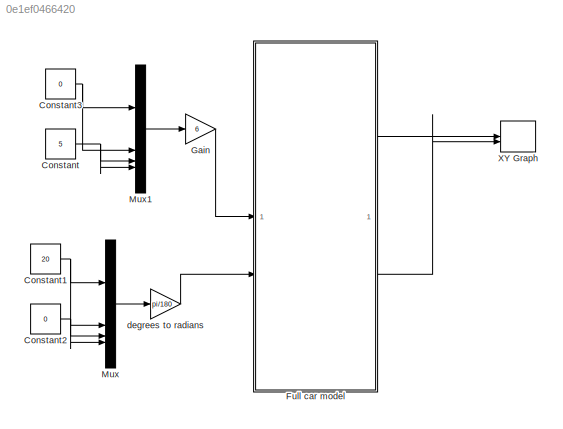
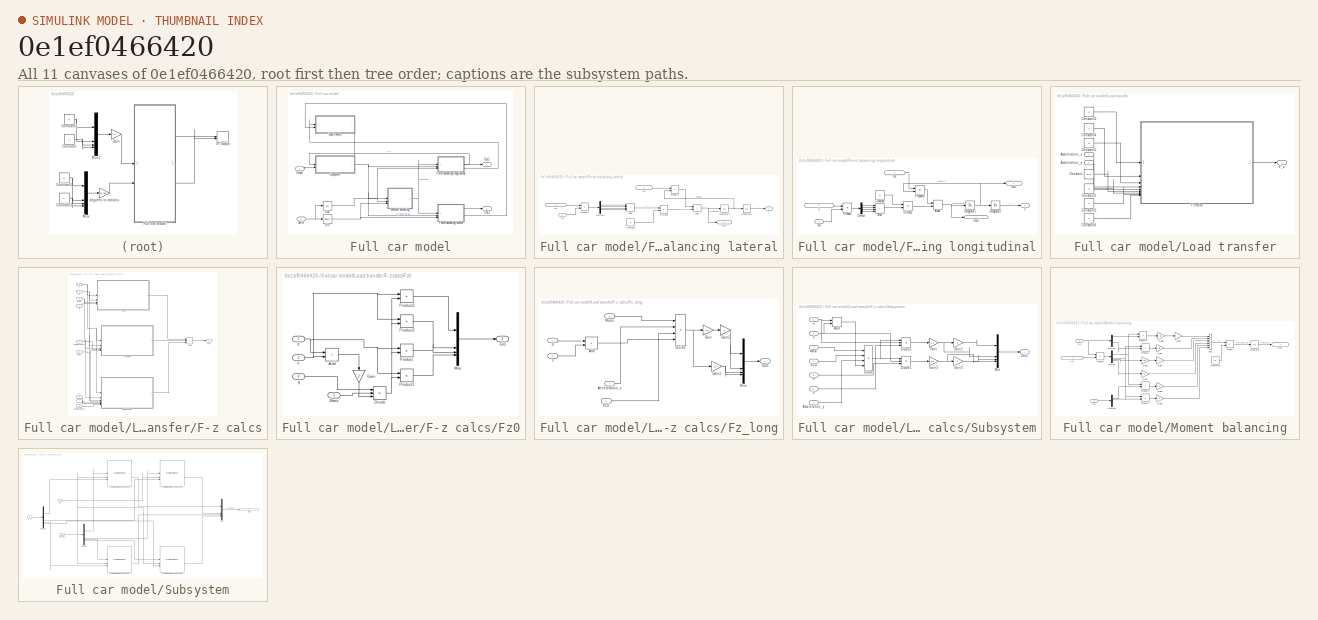
[diagram: thumbnail index - all 11 canvases of the model, root first then tree order]
MODEL slx_0e1ef0466420
KIND model
CONFIG AbsTol = auto
CONFIG EnableMultiTasking = off
CONFIG FixedStep = auto
CONFIG MaxStep = auto
CONFIG MinStep = auto
CONFIG RelTol = 1e-3
CONFIG SampleTimeConstraint = Unconstrained
CONFIG SolverName = VariableStepAuto
CONFIG StartTime = 0.0
CONFIG StopTime = 10
WORKSPACE source: external: MATLAB File  (data not in archive)
BLOCK [Constant] Constant
  Value = 5
BLOCK [Constant] Constant1
  Value = 20
BLOCK [Constant] Constant2
  Value = 0
BLOCK [Constant] Constant3
  Value = 0
BLOCK [SubSystem] Full car model
BLOCK [Trigonometry] Full car model/Cos
  Operator = cos
BLOCK [SubSystem] Full car model/Force balancing lateral
BLOCK [Sum] Full car model/Force balancing lateral/Add2
  IconShape = rectangular
  Inputs = ++++
BLOCK [Sum] Full car model/Force balancing lateral/Add4
  IconShape = rectangular
BLOCK [Constant] Full car model/Force balancing lateral/Constant
  Value = M
BLOCK [Demux] Full car model/Force balancing lateral/Demux3
BLOCK [Product] Full car model/Force balancing lateral/Divide3
  Inputs = */
BLOCK [Inport] Full car model/Force balancing lateral/In1
  IconDisplay = Signal name
BLOCK [Inport] Full car model/Force balancing lateral/In3
  IconDisplay = Signal name
  Port = 2
BLOCK [Inport] Full car model/Force balancing lateral/In4
  IconDisplay = Signal name
  Port = 3
BLOCK [Integrator] Full car model/Force balancing lateral/Integrator3
BLOCK [Integrator] Full car model/Force balancing lateral/Integrator4
BLOCK [Outport] Full car model/Force balancing lateral/Out1
  IconDisplay = Signal name
  Port = 2
BLOCK [Product] Full car model/Force balancing lateral/Product5
BLOCK [Product] Full car model/Force balancing lateral/Product7
BLOCK [Outport] Full car model/Force balancing lateral/y
BLOCK [SubSystem] Full car model/Force balancing longitudinal
BLOCK [Inport] Full car model/Force balancing longitudinal/2
  IconDisplay = Signal name
  Port = 2
BLOCK [Sum] Full car model/Force balancing longitudinal/Add
  IconShape = rectangular
  Inputs = ++++
BLOCK [Sum] Full car model/Force balancing longitudinal/Add3
  IconShape = rectangular
BLOCK [Constant] Full car model/Force balancing longitudinal/Constant
  Value = M
BLOCK [Demux] Full car model/Force balancing longitudinal/Demux
BLOCK [Product] Full car model/Force balancing longitudinal/Divide2
  Inputs = /*
BLOCK [Inport] Full car model/Force balancing longitudinal/In2
  IconDisplay = Signal name
BLOCK [Inport] Full car model/Force balancing longitudinal/In3
  Port = 3
BLOCK [Integrator] Full car model/Force balancing longitudinal/Integrator1
BLOCK [Integrator] Full car model/Force balancing longitudinal/Integrator2
BLOCK [Outport] Full car model/Force balancing longitudinal/Out1
  IconDisplay = Signal name
BLOCK [Outport] Full car model/Force balancing longitudinal/Out2
  IconDisplay = Signal name
  Port = 3
BLOCK [Product] Full car model/Force balancing longitudinal/Product
BLOCK [Product] Full car model/Force balancing longitudinal/Product6
BLOCK [Outport] Full car model/Force balancing longitudinal/x
  Port = 2
BLOCK [SubSystem] Full car model/Load transfer
  PortSchema = {"entries":[{"content":{"sides":[{"content":{"connectorIds":["In1","In2"]},"type":"ConnectorPlacement.EquallySpacedRectSide","uuid":"7a92a029-f41c-4e83-8aa5-ec6ce698d097"},{"content":{"side":"RIGHT"},"type":"ConnectorPlacement.EquallySpacedRectSide","uuid":"18898237-2ea1-4fb3-bf3b-8bf473bf92ef"},{"content":{"side":"TOP"},"type":"ConnectorPlacement.EquallySpacedRectSide","uuid":"0d9cde28-1c95-4b87-...<+354ch>
BLOCK [Inport] Full car model/Load transfer/Acceleration_x
  NameLocation = left
BLOCK [Inport] Full car model/Load transfer/Acceleration_y
  NameLocation = left
  Port = 2
BLOCK [Constant] Full car model/Load transfer/Constant
  Value = hCG
BLOCK [Constant] Full car model/Load transfer/Constant1
  Value = tf
BLOCK [Constant] Full car model/Load transfer/Constant2
  Value = tr
BLOCK [Constant] Full car model/Load transfer/Constant3
  Value = lr
BLOCK [Constant] Full car model/Load transfer/Constant4
  Value = lf
BLOCK [Constant] Full car model/Load transfer/Constant5
  Value = M
BLOCK [Constant] Full car model/Load transfer/Constant6
  Value = g
BLOCK [SubSystem] Full car model/Load transfer/F-z calcs
  NameLocation = top
BLOCK [Inport] Full car model/Load transfer/F-z calcs/Acceleration_x
  Port = 4
BLOCK [Inport] Full car model/Load transfer/F-z calcs/Acceleration_y
  Port = 5
BLOCK [Sum] Full car model/Load transfer/F-z calcs/Add
  IconShape = rectangular
  Inputs = +++
BLOCK [Outport] Full car model/Load transfer/F-z calcs/F_z
BLOCK [SubSystem] Full car model/Load transfer/F-z calcs/Fz0
BLOCK [Sum] Full car model/Load transfer/F-z calcs/Fz0/Add
  IconShape = rectangular
BLOCK [Product] Full car model/Load transfer/F-z calcs/Fz0/Divide
  Inputs = **/
BLOCK [Outport] Full car model/Load transfer/F-z calcs/Fz0/Fz0
BLOCK [Gain] Full car model/Load transfer/F-z calcs/Fz0/Gain
  Gain = 2
  NameLocation = left
BLOCK [Inport] Full car model/Load transfer/F-z calcs/Fz0/Mass
  Port = 3
BLOCK [Mux] Full car model/Load transfer/F-z calcs/Fz0/Mux
  DisplayOption = bar
BLOCK [Product] Full car model/Load transfer/F-z calcs/Fz0/Product
BLOCK [Product] Full car model/Load transfer/F-z calcs/Fz0/Product1
BLOCK [Product] Full car model/Load transfer/F-z calcs/Fz0/Product2
BLOCK [Product] Full car model/Load transfer/F-z calcs/Fz0/Product3
BLOCK [Inport] Full car model/Load transfer/F-z calcs/Fz0/g
  Port = 4
BLOCK [Inport] Full car model/Load transfer/F-z calcs/Fz0/lf
BLOCK [Inport] Full car model/Load transfer/F-z calcs/Fz0/lr
  Port = 2
BLOCK [SubSystem] Full car model/Load transfer/F-z calcs/Fz_long
BLOCK [Inport] Full car model/Load transfer/F-z calcs/Fz_long/Acceleration_x
  Port = 4
BLOCK [Sum] Full car model/Load transfer/F-z calcs/Fz_long/Add
  IconShape = rectangular
BLOCK [Product] Full car model/Load transfer/F-z calcs/Fz_long/Divide
  Inputs = ***/
BLOCK [Gain] Full car model/Load transfer/F-z calcs/Fz_long/Gain
  Gain = 0.5
BLOCK [Gain] Full car model/Load transfer/F-z calcs/Fz_long/Gain1
  Gain = 0.5
BLOCK [Gain] Full car model/Load transfer/F-z calcs/Fz_long/Gain2
  Gain = -1
BLOCK [Inport] Full car model/Load transfer/F-z calcs/Fz_long/Mass
  Port = 3
BLOCK [Mux] Full car model/Load transfer/F-z calcs/Fz_long/Mux
  DisplayOption = bar
BLOCK [Outport] Full car model/Load transfer/F-z calcs/Fz_long/Out1
BLOCK [Inport] Full car model/Load transfer/F-z calcs/Fz_long/hCG
  Port = 5
BLOCK [Inport] Full car model/Load transfer/F-z calcs/Fz_long/lf
BLOCK [Inport] Full car model/Load transfer/F-z calcs/Fz_long/lr
  Port = 2
BLOCK [Inport] Full car model/Load transfer/F-z calcs/Mass
  Port = 3
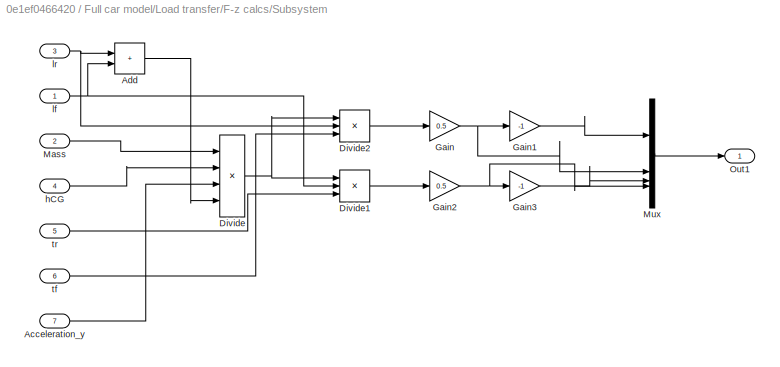
BLOCK [SubSystem] Full car model/Load transfer/F-z calcs/Subsystem
BLOCK [Inport] Full car model/Load transfer/F-z calcs/Subsystem/Acceleration_y
  Port = 7
BLOCK [Sum] Full car model/Load transfer/F-z calcs/Subsystem/Add
  IconShape = rectangular
BLOCK [Product] Full car model/Load transfer/F-z calcs/Subsystem/Divide
  Inputs = ***/
BLOCK [Product] Full car model/Load transfer/F-z calcs/Subsystem/Divide1
  Inputs = **/
BLOCK [Product] Full car model/Load transfer/F-z calcs/Subsystem/Divide2
  Inputs = **/
BLOCK [Gain] Full car model/Load transfer/F-z calcs/Subsystem/Gain
  Gain = 0.5
BLOCK [Gain] Full car model/Load transfer/F-z calcs/Subsystem/Gain1
  Gain = -1
BLOCK [Gain] Full car model/Load transfer/F-z calcs/Subsystem/Gain2
  Gain = 0.5
BLOCK [Gain] Full car model/Load transfer/F-z calcs/Subsystem/Gain3
  Gain = -1
BLOCK [Inport] Full car model/Load transfer/F-z calcs/Subsystem/Mass
  Port = 2
BLOCK [Mux] Full car model/Load transfer/F-z calcs/Subsystem/Mux
  DisplayOption = bar
BLOCK [Outport] Full car model/Load transfer/F-z calcs/Subsystem/Out1
BLOCK [Inport] Full car model/Load transfer/F-z calcs/Subsystem/hCG
  Port = 4
BLOCK [Inport] Full car model/Load transfer/F-z calcs/Subsystem/lf
BLOCK [Inport] Full car model/Load transfer/F-z calcs/Subsystem/lr
  Port = 3
BLOCK [Inport] Full car model/Load transfer/F-z calcs/Subsystem/tf
  Port = 6
BLOCK [Inport] Full car model/Load transfer/F-z calcs/Subsystem/tr
  Port = 5
BLOCK [Inport] Full car model/Load transfer/F-z calcs/g
  Port = 9
BLOCK [Inport] Full car model/Load transfer/F-z calcs/hCG
  Port = 6
BLOCK [Inport] Full car model/Load transfer/F-z calcs/lf
  Port = 2
BLOCK [Inport] Full car model/Load transfer/F-z calcs/lr
BLOCK [Inport] Full car model/Load transfer/F-z calcs/tf
  Port = 7
BLOCK [Inport] Full car model/Load transfer/F-z calcs/tr
  Port = 8
BLOCK [Outport] Full car model/Load transfer/F_z
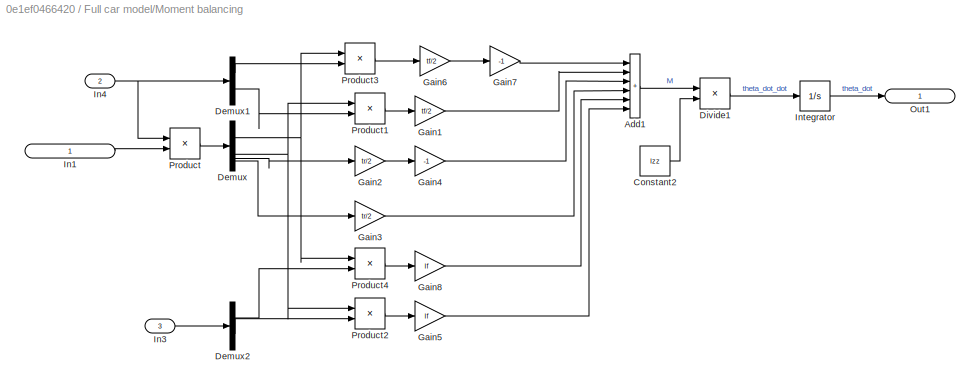
BLOCK [SubSystem] Full car model/Moment balancing
BLOCK [Sum] Full car model/Moment balancing/Add1
  IconShape = rectangular
  Inputs = ++++++
BLOCK [Constant] Full car model/Moment balancing/Constant2
  Value = Izz
BLOCK [Demux] Full car model/Moment balancing/Demux
BLOCK [Demux] Full car model/Moment balancing/Demux1
BLOCK [Demux] Full car model/Moment balancing/Demux2
BLOCK [Product] Full car model/Moment balancing/Divide1
  Inputs = */
BLOCK [Gain] Full car model/Moment balancing/Gain1
  Gain = tf/2
BLOCK [Gain] Full car model/Moment balancing/Gain2
  Gain = tr/2
BLOCK [Gain] Full car model/Moment balancing/Gain3
  Gain = tr/2
BLOCK [Gain] Full car model/Moment balancing/Gain4
  Gain = -1
BLOCK [Gain] Full car model/Moment balancing/Gain5
  Gain = lf
BLOCK [Gain] Full car model/Moment balancing/Gain6
  Gain = tf/2
BLOCK [Gain] Full car model/Moment balancing/Gain7
  Gain = -1
BLOCK [Gain] Full car model/Moment balancing/Gain8
  Gain = lf
BLOCK [Inport] Full car model/Moment balancing/In1
  IconDisplay = Signal name
BLOCK [Inport] Full car model/Moment balancing/In3
  IconDisplay = Signal name
  Port = 3
BLOCK [Inport] Full car model/Moment balancing/In4
  IconDisplay = Signal name
  Port = 2
BLOCK [Integrator] Full car model/Moment balancing/Integrator
BLOCK [Outport] Full car model/Moment balancing/Out1
  IconDisplay = Signal name
BLOCK [Product] Full car model/Moment balancing/Product
BLOCK [Product] Full car model/Moment balancing/Product1
BLOCK [Product] Full car model/Moment balancing/Product2
BLOCK [Product] Full car model/Moment balancing/Product3
BLOCK [Product] Full car model/Moment balancing/Product4
BLOCK [Outport] Full car model/Out1
  IconDisplay = Signal name
BLOCK [Outport] Full car model/Out2
  IconDisplay = Signal name
  Port = 2
BLOCK [Trigonometry] Full car model/Sin
BLOCK [SubSystem] Full car model/Subsystem
  PortSchema = {"entries":[{"content":{"sides":[{"content":{"connectorIds":["In1","In2"]},"type":"ConnectorPlacement.EquallySpacedRectSide","uuid":"7a92a029-f41c-4e83-8aa5-ec6ce698d097"},{"content":{"connectorIds":["Out1"],"side":"RIGHT"},"type":"ConnectorPlacement.EquallySpacedRectSide","uuid":"18898237-2ea1-4fb3-bf3b-8bf473bf92ef"},{"content":{"connectorIds":["In3"],"side":"TOP"},"type":"ConnectorPlacement.Equ...<+251ch>
BLOCK [Demux] Full car model/Subsystem/Demux
BLOCK [Demux] Full car model/Subsystem/Demux2
BLOCK [Inport] Full car model/Subsystem/F_z
  Port = 3
BLOCK [Inport] Full car model/Subsystem/In1
  IconDisplay = Signal name
BLOCK [Reference] Full car model/Subsystem/Longitudinal Wheel - No Brake  REF=autolibshared/Longitudinal Wheel
  AttributesFormatString = Fx Type: %<FxType>\nRolling Type: %<rollingType>
  LibrarySourceBlock = autolibwheelslong/Longitudinal Wheel - No Brake
  SourceBlock = autolibshared/Longitudinal Wheel
  SourceType = Longitudinal Wheel
BLOCK [Reference] Full car model/Subsystem/Longitudinal Wheel - No Brake1  REF=autolibshared/Longitudinal Wheel
  AttributesFormatString = Fx Type: %<FxType>\nRolling Type: %<rollingType>
  LibrarySourceBlock = autolibwheelslong/Longitudinal Wheel - No Brake
  SourceBlock = autolibshared/Longitudinal Wheel
  SourceType = Longitudinal Wheel
BLOCK [Reference] Full car model/Subsystem/Longitudinal Wheel - No Brake2  REF=autolibshared/Longitudinal Wheel
  AttributesFormatString = Fx Type: %<FxType>\nRolling Type: %<rollingType>
  LibrarySourceBlock = autolibwheelslong/Longitudinal Wheel - No Brake
  SourceBlock = autolibshared/Longitudinal Wheel
  SourceType = Longitudinal Wheel
BLOCK [Reference] Full car model/Subsystem/Longitudinal Wheel - No Brake3  REF=autolibshared/Longitudinal Wheel
  AttributesFormatString = Fx Type: %<FxType>\nRolling Type: %<rollingType>
  LibrarySourceBlock = autolibwheelslong/Longitudinal Wheel - No Brake
  SourceBlock = autolibshared/Longitudinal Wheel
  SourceType = Longitudinal Wheel
BLOCK [Mux] Full car model/Subsystem/Mux
  DisplayOption = bar
BLOCK [Outport] Full car model/Subsystem/Out1
  IconDisplay = Signal name
BLOCK [Inport] Full car model/Subsystem/torque
  Port = 2
BLOCK [Inport] Full car model/delta
  Port = 2
BLOCK [Inport] Full car model/torque
BLOCK [Gain] Gain
  Gain = 6
BLOCK [Mux] Mux
  DisplayOption = bar
BLOCK [Mux] Mux1
  DisplayOption = bar
BLOCK [Record] XY Graph
  CompatibilityTag = XY
  FileSettingsInternal = {"entries":[{"content":{"excelSettings":{"content":{},"type":"Streamout.ExcelSettings"}},"type":"Streamout.FileSettingStorage","uuid":""}],"packageUris":["http:\/\/schema.mathworks.com\/mf0\/streamout_blocks\/R2020a"],"version":"1.0"}
  Layout = [1 1]
  SignalsInternal = {"entries":[{"content":{"signals":[{"content":{"blockPath":[],"dimensions":[1],"domain":"","lineColor":"#ff6929","lineWidth":2,"plots":[ 1 ],"port":1,"sid":[""],"signalID":1,"signalName":"Full car model:1"},"type":"RecordBlkView.Signal","uuid":""},{"content":{"blockPath":[],"dimensions":[1],"domain":"","lineColor":"#ff13a6","lineWidth":2,"plots":[ 1 ],"port":2,"sid":[""],"signalID":2,"signalName":...<+206ch>
  VisualizationBindings = {"xyplotplugin":{"info":[{"series":[{"bindingParametersList":[{"parameter":"X-Axis","signalID":1,"signalName":"Full car model:1"},{"parameter":"Y-Axis","signalID":2,"signalName":"Full car model:2"},{"parameter":"X-Axis","signalID":1,"signalName":"Full car model:1"},{"parameter":"Y-Axis","signalID":2,"signalName":"Full car model:2"},{"parameter":"X-Axis","signalID":1,"signalName":"Full car model:1"...<+239ch>
BLOCK [Gain] degrees to radians
  Gain = pi/180
NET Constant1:1 -> Mux:1, Mux:2
NET Constant2:1 -> Mux:3, Mux:4
NET Constant3:1 -> Mux1:1, Mux1:2
NET Constant:1 -> Mux1:3, Mux1:4
NET Full car model/Cos:1 -> Full car model/Force balancing longitudinal:3, Full car model/Moment balancing:2
LINE Full car model/Force balancing lateral/Add2:1 -> Full car model/Force balancing lateral/Divide3:1
NET Full car model/Force balancing lateral/Add4:1 -> Full car model/Force balancing lateral/Integrator3:1, Full car model/Force balancing lateral/Out1:1
LINE Full car model/Force balancing lateral/Constant:1 -> Full car model/Force balancing lateral/Divide3:2
LINE Full car model/Force balancing lateral/Demux3:1 -> Full car model/Force balancing lateral/Add2:1
LINE Full car model/Force balancing lateral/Demux3:2 -> Full car model/Force balancing lateral/Add2:2
LINE Full car model/Force balancing lateral/Demux3:3 -> Full car model/Force balancing lateral/Add2:3
LINE Full car model/Force balancing lateral/Demux3:4 -> Full car model/Force balancing lateral/Add2:4
LINE Full car model/Force balancing lateral/Divide3:1 -> Full car model/Force balancing lateral/Add4:2
LINE Full car model/Force balancing lateral/In1:1 -> Full car model/Force balancing lateral/Product7:1
LINE Full car model/Force balancing lateral/In3:1 -> Full car model/Force balancing lateral/Product5:1
LINE Full car model/Force balancing lateral/In4:1 -> Full car model/Force balancing lateral/Product5:2
NET Full car model/Force balancing lateral/Integrator3:1 -> Full car model/Force balancing lateral/Integrator4:1, Full car model/Force balancing lateral/Product7:2
LINE Full car model/Force balancing lateral/Integrator4:1 -> Full car model/Force balancing lateral/y:1
LINE Full car model/Force balancing lateral/Product5:1 -> Full car model/Force balancing lateral/Demux3:1
LINE Full car model/Force balancing lateral/Product7:1 -> Full car model/Force balancing lateral/Add4:1
LINE Full car model/Force balancing lateral:1 -> Full car model/Out2:1
LINE Full car model/Force balancing lateral:2 -> Full car model/Load transfer:2
LINE Full car model/Force balancing longitudinal/2:1 -> Full car model/Force balancing longitudinal/Product:1
NET Full car model/Force balancing longitudinal/Add3:1 -> Full car model/Force balancing longitudinal/Integrator1:1, Full car model/Force balancing longitudinal/Out2:1
LINE Full car model/Force balancing longitudinal/Add:1 -> Full car model/Force balancing longitudinal/Divide2:2
LINE Full car model/Force balancing longitudinal/Constant:1 -> Full car model/Force balancing longitudinal/Divide2:1
LINE Full car model/Force balancing longitudinal/Demux:1 -> Full car model/Force balancing longitudinal/Add:1
LINE Full car model/Force balancing longitudinal/Demux:2 -> Full car model/Force balancing longitudinal/Add:2
LINE Full car model/Force balancing longitudinal/Demux:3 -> Full car model/Force balancing longitudinal/Add:3
LINE Full car model/Force balancing longitudinal/Demux:4 -> Full car model/Force balancing longitudinal/Add:4
LINE Full car model/Force balancing longitudinal/Divide2:1 -> Full car model/Force balancing longitudinal/Add3:2
LINE Full car model/Force balancing longitudinal/In2:1 -> Full car model/Force balancing longitudinal/Product6:1
LINE Full car model/Force balancing longitudinal/In3:1 -> Full car model/Force balancing longitudinal/Product:2
NET Full car model/Force balancing longitudinal/Integrator1:1 -> Full car model/Force balancing longitudinal/Integrator2:1, Full car model/Force balancing longitudinal/Out1:1, Full car model/Force balancing longitudinal/Product6:2
LINE Full car model/Force balancing longitudinal/Integrator2:1 -> Full car model/Force balancing longitudinal/x:1
LINE Full car model/Force balancing longitudinal/Product6:1 -> Full car model/Force balancing longitudinal/Add3:1
LINE Full car model/Force balancing longitudinal/Product:1 -> Full car model/Force balancing longitudinal/Demux:1
LINE Full car model/Force balancing longitudinal:1 -> Full car model/Subsystem:1
LINE Full car model/Force balancing longitudinal:2 -> Full car model/Out1:1
LINE Full car model/Force balancing longitudinal:3 -> Full car model/Load transfer:1
LINE Full car model/Load transfer/Acceleration_x:1 -> Full car model/Load transfer/F-z calcs:4
LINE Full car model/Load transfer/Acceleration_y:1 -> Full car model/Load transfer/F-z calcs:5
LINE Full car model/Load transfer/Constant1:1 -> Full car model/Load transfer/F-z calcs:7
LINE Full car model/Load transfer/Constant2:1 -> Full car model/Load transfer/F-z calcs:8
LINE Full car model/Load transfer/Constant3:1 -> Full car model/Load transfer/F-z calcs:1
LINE Full car model/Load transfer/Constant4:1 -> Full car model/Load transfer/F-z calcs:2
LINE Full car model/Load transfer/Constant5:1 -> Full car model/Load transfer/F-z calcs:3
LINE Full car model/Load transfer/Constant6:1 -> Full car model/Load transfer/F-z calcs:9
LINE Full car model/Load transfer/Constant:1 -> Full car model/Load transfer/F-z calcs:6
LINE Full car model/Load transfer/F-z calcs/Acceleration_x:1 -> Full car model/Load transfer/F-z calcs/Fz_long:4
LINE Full car model/Load transfer/F-z calcs/Acceleration_y:1 -> Full car model/Load transfer/F-z calcs/Subsystem:7
LINE Full car model/Load transfer/F-z calcs/Add:1 -> Full car model/Load transfer/F-z calcs/F_z:1
LINE Full car model/Load transfer/F-z calcs/Fz0/Add:1 -> Full car model/Load transfer/F-z calcs/Fz0/Gain:1
NET Full car model/Load transfer/F-z calcs/Fz0/Divide:1 -> Full car model/Load transfer/F-z calcs/Fz0/Product1:2, Full car model/Load transfer/F-z calcs/Fz0/Product2:2, Full car model/Load transfer/F-z calcs/Fz0/Product3:2, Full car model/Load transfer/F-z calcs/Fz0/Product:2
LINE Full car model/Load transfer/F-z calcs/Fz0/Gain:1 -> Full car model/Load transfer/F-z calcs/Fz0/Divide:3
LINE Full car model/Load transfer/F-z calcs/Fz0/Mass:1 -> Full car model/Load transfer/F-z calcs/Fz0/Divide:2
LINE Full car model/Load transfer/F-z calcs/Fz0/Mux:1 -> Full car model/Load transfer/F-z calcs/Fz0/Fz0:1
LINE Full car model/Load transfer/F-z calcs/Fz0/Product1:1 -> Full car model/Load transfer/F-z calcs/Fz0/Mux:4
LINE Full car model/Load transfer/F-z calcs/Fz0/Product2:1 -> Full car model/Load transfer/F-z calcs/Fz0/Mux:1
LINE Full car model/Load transfer/F-z calcs/Fz0/Product3:1 -> Full car model/Load transfer/F-z calcs/Fz0/Mux:2
LINE Full car model/Load transfer/F-z calcs/Fz0/Product:1 -> Full car model/Load transfer/F-z calcs/Fz0/Mux:3
LINE Full car model/Load transfer/F-z calcs/Fz0/g:1 -> Full car model/Load transfer/F-z calcs/Fz0/Divide:1
NET Full car model/Load transfer/F-z calcs/Fz0/lf:1 -> Full car model/Load transfer/F-z calcs/Fz0/Add:1, Full car model/Load transfer/F-z calcs/Fz0/Product1:1, Full car model/Load transfer/F-z calcs/Fz0/Product:1
NET Full car model/Load transfer/F-z calcs/Fz0/lr:1 -> Full car model/Load transfer/F-z calcs/Fz0/Add:2, Full car model/Load transfer/F-z calcs/Fz0/Product2:1, Full car model/Load transfer/F-z calcs/Fz0/Product3:1
LINE Full car model/Load transfer/F-z calcs/Fz0:1 -> Full car model/Load transfer/F-z calcs/Add:1
LINE Full car model/Load transfer/F-z calcs/Fz_long/Acceleration_x:1 -> Full car model/Load transfer/F-z calcs/Fz_long/Divide:2
LINE Full car model/Load transfer/F-z calcs/Fz_long/Add:1 -> Full car model/Load transfer/F-z calcs/Fz_long/Divide:4
NET Full car model/Load transfer/F-z calcs/Fz_long/Divide:1 -> Full car model/Load transfer/F-z calcs/Fz_long/Gain1:1, Full car model/Load transfer/F-z calcs/Fz_long/Gain:1
NET Full car model/Load transfer/F-z calcs/Fz_long/Gain1:1 -> Full car model/Load transfer/F-z calcs/Fz_long/Mux:3, Full car model/Load transfer/F-z calcs/Fz_long/Mux:4
NET Full car model/Load transfer/F-z calcs/Fz_long/Gain2:1 -> Full car model/Load transfer/F-z calcs/Fz_long/Mux:1, Full car model/Load transfer/F-z calcs/Fz_long/Mux:2
LINE Full car model/Load transfer/F-z calcs/Fz_long/Gain:1 -> Full car model/Load transfer/F-z calcs/Fz_long/Gain2:1
LINE Full car model/Load transfer/F-z calcs/Fz_long/Mass:1 -> Full car model/Load transfer/F-z calcs/Fz_long/Divide:1
LINE Full car model/Load transfer/F-z calcs/Fz_long/Mux:1 -> Full car model/Load transfer/F-z calcs/Fz_long/Out1:1
LINE Full car model/Load transfer/F-z calcs/Fz_long/hCG:1 -> Full car model/Load transfer/F-z calcs/Fz_long/Divide:3
LINE Full car model/Load transfer/F-z calcs/Fz_long/lf:1 -> Full car model/Load transfer/F-z calcs/Fz_long/Add:1
LINE Full car model/Load transfer/F-z calcs/Fz_long/lr:1 -> Full car model/Load transfer/F-z calcs/Fz_long/Add:2
LINE Full car model/Load transfer/F-z calcs/Fz_long:1 -> Full car model/Load transfer/F-z calcs/Add:2
NET Full car model/Load transfer/F-z calcs/Mass:1 -> Full car model/Load transfer/F-z calcs/Fz0:3, Full car model/Load transfer/F-z calcs/Fz_long:3, Full car model/Load transfer/F-z calcs/Subsystem:2
LINE Full car model/Load transfer/F-z calcs/Subsystem/Acceleration_y:1 -> Full car model/Load transfer/F-z calcs/Subsystem/Divide:3
LINE Full car model/Load transfer/F-z calcs/Subsystem/Add:1 -> Full car model/Load transfer/F-z calcs/Subsystem/Divide:4
LINE Full car model/Load transfer/F-z calcs/Subsystem/Divide1:1 -> Full car model/Load transfer/F-z calcs/Subsystem/Gain2:1
LINE Full car model/Load transfer/F-z calcs/Subsystem/Divide2:1 -> Full car model/Load transfer/F-z calcs/Subsystem/Gain:1
NET Full car model/Load transfer/F-z calcs/Subsystem/Divide:1 -> Full car model/Load transfer/F-z calcs/Subsystem/Divide1:1, Full car model/Load transfer/F-z calcs/Subsystem/Divide2:1
LINE Full car model/Load transfer/F-z calcs/Subsystem/Gain1:1 -> Full car model/Load transfer/F-z calcs/Subsystem/Mux:1
NET Full car model/Load transfer/F-z calcs/Subsystem/Gain2:1 -> Full car model/Load transfer/F-z calcs/Subsystem/Gain3:1, Full car model/Load transfer/F-z calcs/Subsystem/Mux:4
LINE Full car model/Load transfer/F-z calcs/Subsystem/Gain3:1 -> Full car model/Load transfer/F-z calcs/Subsystem/Mux:3
NET Full car model/Load transfer/F-z calcs/Subsystem/Gain:1 -> Full car model/Load transfer/F-z calcs/Subsystem/Gain1:1, Full car model/Load transfer/F-z calcs/Subsystem/Mux:2
LINE Full car model/Load transfer/F-z calcs/Subsystem/Mass:1 -> Full car model/Load transfer/F-z calcs/Subsystem/Divide:1
LINE Full car model/Load transfer/F-z calcs/Subsystem/Mux:1 -> Full car model/Load transfer/F-z calcs/Subsystem/Out1:1
LINE Full car model/Load transfer/F-z calcs/Subsystem/hCG:1 -> Full car model/Load transfer/F-z calcs/Subsystem/Divide:2
NET Full car model/Load transfer/F-z calcs/Subsystem/lf:1 -> Full car model/Load transfer/F-z calcs/Subsystem/Add:2, Full car model/Load transfer/F-z calcs/Subsystem/Divide1:2
NET Full car model/Load transfer/F-z calcs/Subsystem/lr:1 -> Full car model/Load transfer/F-z calcs/Subsystem/Add:1, Full car model/Load transfer/F-z calcs/Subsystem/Divide2:2
LINE Full car model/Load transfer/F-z calcs/Subsystem/tf:1 -> Full car model/Load transfer/F-z calcs/Subsystem/Divide2:3
LINE Full car model/Load transfer/F-z calcs/Subsystem/tr:1 -> Full car model/Load transfer/F-z calcs/Subsystem/Divide1:3
LINE Full car model/Load transfer/F-z calcs/Subsystem:1 -> Full car model/Load transfer/F-z calcs/Add:3
LINE Full car model/Load transfer/F-z calcs/g:1 -> Full car model/Load transfer/F-z calcs/Fz0:4
NET Full car model/Load transfer/F-z calcs/hCG:1 -> Full car model/Load transfer/F-z calcs/Fz_long:5, Full car model/Load transfer/F-z calcs/Subsystem:4
NET Full car model/Load transfer/F-z calcs/lf:1 -> Full car model/Load transfer/F-z calcs/Fz0:1, Full car model/Load transfer/F-z calcs/Fz_long:1, Full car model/Load transfer/F-z calcs/Subsystem:1
NET Full car model/Load transfer/F-z calcs/lr:1 -> Full car model/Load transfer/F-z calcs/Fz0:2, Full car model/Load transfer/F-z calcs/Fz_long:2, Full car model/Load transfer/F-z calcs/Subsystem:3
LINE Full car model/Load transfer/F-z calcs/tf:1 -> Full car model/Load transfer/F-z calcs/Subsystem:6
LINE Full car model/Load transfer/F-z calcs/tr:1 -> Full car model/Load transfer/F-z calcs/Subsystem:5
LINE Full car model/Load transfer/F-z calcs:1 -> Full car model/Load transfer/F_z:1
LINE Full car model/Load transfer:1 -> Full car model/Subsystem:3
LINE Full car model/Moment balancing/Add1:1 -> Full car model/Moment balancing/Divide1:1
LINE Full car model/Moment balancing/Constant2:1 -> Full car model/Moment balancing/Divide1:2
LINE Full car model/Moment balancing/Demux1:1 -> Full car model/Moment balancing/Product3:2
LINE Full car model/Moment balancing/Demux1:2 -> Full car model/Moment balancing/Product1:2
LINE Full car model/Moment balancing/Demux2:1 -> Full car model/Moment balancing/Product4:2
LINE Full car model/Moment balancing/Demux2:2 -> Full car model/Moment balancing/Product2:2
NET Full car model/Moment balancing/Demux:1 -> Full car model/Moment balancing/Product3:1, Full car model/Moment balancing/Product4:1
NET Full car model/Moment balancing/Demux:2 -> Full car model/Moment balancing/Product1:1, Full car model/Moment balancing/Product2:1
LINE Full car model/Moment balancing/Demux:3 -> Full car model/Moment balancing/Gain2:1
LINE Full car model/Moment balancing/Demux:4 -> Full car model/Moment balancing/Gain3:1
LINE Full car model/Moment balancing/Divide1:1 -> Full car model/Moment balancing/Integrator:1
LINE Full car model/Moment balancing/Gain1:1 -> Full car model/Moment balancing/Add1:2
LINE Full car model/Moment balancing/Gain2:1 -> Full car model/Moment balancing/Gain4:1
LINE Full car model/Moment balancing/Gain3:1 -> Full car model/Moment balancing/Add1:4
LINE Full car model/Moment balancing/Gain4:1 -> Full car model/Moment balancing/Add1:3
LINE Full car model/Moment balancing/Gain5:1 -> Full car model/Moment balancing/Add1:6
LINE Full car model/Moment balancing/Gain6:1 -> Full car model/Moment balancing/Gain7:1
LINE Full car model/Moment balancing/Gain7:1 -> Full car model/Moment balancing/Add1:1
LINE Full car model/Moment balancing/Gain8:1 -> Full car model/Moment balancing/Add1:5
LINE Full car model/Moment balancing/In1:1 -> Full car model/Moment balancing/Product:2
LINE Full car model/Moment balancing/In3:1 -> Full car model/Moment balancing/Demux2:1
NET Full car model/Moment balancing/In4:1 -> Full car model/Moment balancing/Demux1:1, Full car model/Moment balancing/Product:1
LINE Full car model/Moment balancing/Integrator:1 -> Full car model/Moment balancing/Out1:1
LINE Full car model/Moment balancing/Product1:1 -> Full car model/Moment balancing/Gain1:1
LINE Full car model/Moment balancing/Product2:1 -> Full car model/Moment balancing/Gain5:1
LINE Full car model/Moment balancing/Product3:1 -> Full car model/Moment balancing/Gain6:1
LINE Full car model/Moment balancing/Product4:1 -> Full car model/Moment balancing/Gain8:1
LINE Full car model/Moment balancing/Product:1 -> Full car model/Moment balancing/Demux:1
NET Full car model/Moment balancing:1 -> Full car model/Force balancing lateral:1, Full car model/Force balancing longitudinal:1
NET Full car model/Sin:1 -> Full car model/Force balancing lateral:3, Full car model/Moment balancing:3
LINE Full car model/Subsystem/Demux2:1 -> Full car model/Subsystem/Longitudinal Wheel - No Brake:3
LINE Full car model/Subsystem/Demux2:2 -> Full car model/Subsystem/Longitudinal Wheel - No Brake2:3
LINE Full car model/Subsystem/Demux2:3 -> Full car model/Subsystem/Longitudinal Wheel - No Brake1:3
LINE Full car model/Subsystem/Demux2:4 -> Full car model/Subsystem/Longitudinal Wheel - No Brake3:3
LINE Full car model/Subsystem/Demux:1 -> Full car model/Subsystem/Longitudinal Wheel - No Brake:1
LINE Full car model/Subsystem/Demux:2 -> Full car model/Subsystem/Longitudinal Wheel - No Brake2:1
LINE Full car model/Subsystem/Demux:3 -> Full car model/Subsystem/Longitudinal Wheel - No Brake1:1
LINE Full car model/Subsystem/Demux:4 -> Full car model/Subsystem/Longitudinal Wheel - No Brake3:1
LINE Full car model/Subsystem/F_z:1 -> Full car model/Subsystem/Demux2:1
NET Full car model/Subsystem/In1:1 -> Full car model/Subsystem/Longitudinal Wheel - No Brake1:2, Full car model/Subsystem/Longitudinal Wheel - No Brake2:2, Full car model/Subsystem/Longitudinal Wheel - No Brake3:2, Full car model/Subsystem/Longitudinal Wheel - No Brake:2
LINE Full car model/Subsystem/Longitudinal Wheel - No Brake1:2 -> Full car model/Subsystem/Mux:3
LINE Full car model/Subsystem/Longitudinal Wheel - No Brake2:2 -> Full car model/Subsystem/Mux:2
LINE Full car model/Subsystem/Longitudinal Wheel - No Brake3:2 -> Full car model/Subsystem/Mux:4
LINE Full car model/Subsystem/Longitudinal Wheel - No Brake:2 -> Full car model/Subsystem/Mux:1
LINE Full car model/Subsystem/Mux:1 -> Full car model/Subsystem/Out1:1
LINE Full car model/Subsystem/torque:1 -> Full car model/Subsystem/Demux:1
NET Full car model/Subsystem:1 -> Full car model/Force balancing lateral:2, Full car model/Force balancing longitudinal:2, Full car model/Moment balancing:1
NET Full car model/delta:1 -> Full car model/Cos:1, Full car model/Sin:1
LINE Full car model/torque:1 -> Full car model/Subsystem:2
LINE Full car model:1 -> XY Graph:1
LINE Full car model:2 -> XY Graph:2
LINE Gain:1 -> Full car model:1
LINE Mux1:1 -> Gain:1
LINE Mux:1 -> degrees to radians:1
LINE degrees to radians:1 -> Full car model:2
note: NET lines group one-source signal fan-out (src -> all destinations, sorted); 1:1 wires keep LINE
